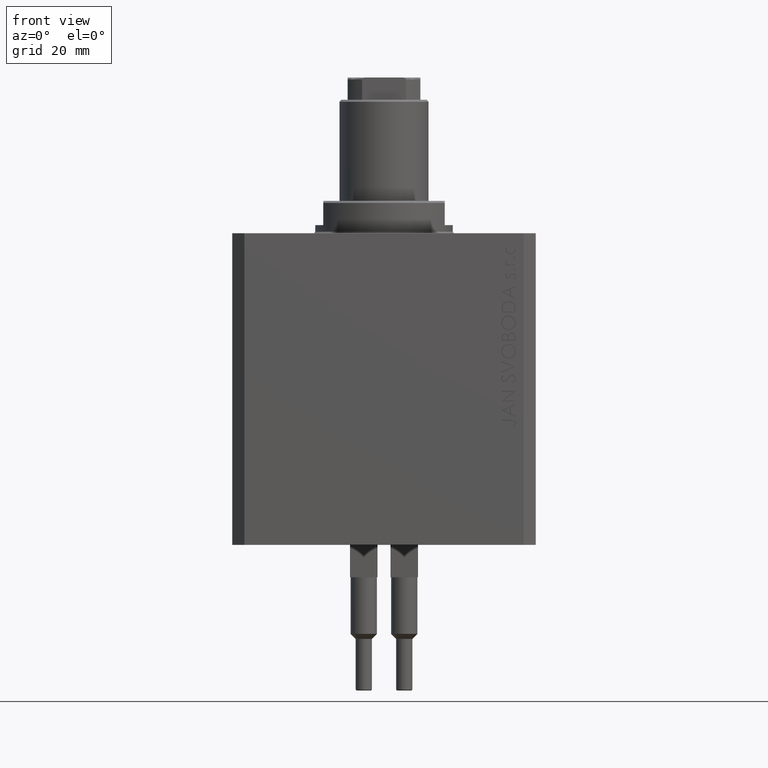
[diagram: clean part render]
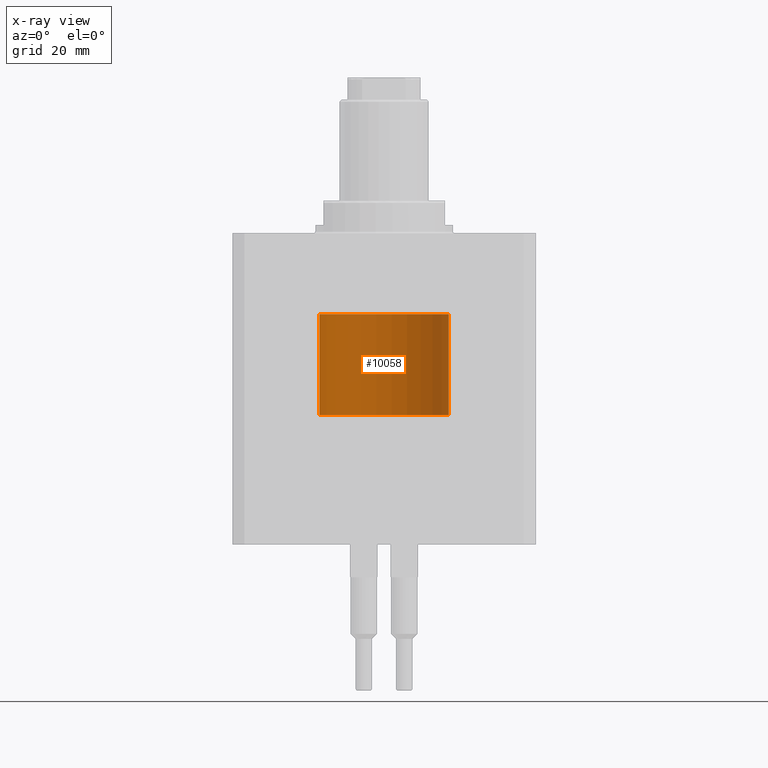
[diagram: x-ray — body ghosted, one internal face saturated and labeled with its STEP entity id]
A machine part, front view, then the same camera in x-ray: the body is ghosted and one INTERNAL B-rep face — a face not visible from any outside direction — is saturated and labeled: STEP entity #10058.
In plain terms, the highlighted cylindrical surface (partial cylindrical patch) has radius 16 mm, axis along (-0, -0, -1).
Its self-contained STEP definition (entity closure, byte-faithful):
#401 = LINE ( 'NONE', #14372, #36501 ) ;
#1152 = LINE ( 'NONE', #12148, #21972 ) ;
#1553 = EDGE_CURVE ( 'NONE', #27727, #12698, #11305, .T. ) ;
#1695 = CIRCLE ( 'NONE', #46211, 16.00000000000000000 ) ;
#1917 = CARTESIAN_POINT ( 'NONE',  ( 16.00000000000000000, 1.959434878635765131E-15, 0.000000000000000000 ) ) ;
#4247 = CARTESIAN_POINT ( 'NONE',  ( 0.000000000000000000, 0.000000000000000000, 25.00000000000000000 ) ) ;
#7612 = CARTESIAN_POINT ( 'NONE',  ( -16.00000000000000000, 0.000000000000000000, 0.000000000000000000 ) ) ;
#7903 = DIRECTION ( 'NONE',  ( -1.000000000000000000, 0.000000000000000000, 0.000000000000000000 ) ) ;
#9962 = ORIENTED_EDGE ( 'NONE', *, *, #44691, .T. ) ;
#10058 = ADVANCED_FACE ( 'NONE', ( #34282 ), #22587, .T. ) ;
#11305 = CIRCLE ( 'NONE', #45460, 16.00000000000000000 ) ;
#11778 = AXIS2_PLACEMENT_3D ( 'NONE', #19394, #19166, #7903 ) ;
#12148 = CARTESIAN_POINT ( 'NONE',  ( -16.00000000000000000, 0.000000000000000000, 25.00000000000000000 ) ) ;
#12698 = VERTEX_POINT ( 'NONE', #12960 ) ;
#12927 = ORIENTED_EDGE ( 'NONE', *, *, #17597, .F. ) ;
#12960 = CARTESIAN_POINT ( 'NONE',  ( -16.00000000000000000, 0.000000000000000000, 25.00000000000000000 ) ) ;
#14372 = CARTESIAN_POINT ( 'NONE',  ( 16.00000000000000000, 1.959434878635765131E-15, 25.00000000000000000 ) ) ;
#15488 = DIRECTION ( 'NONE',  ( 1.000000000000000000, 0.000000000000000000, 0.000000000000000000 ) ) ;
#17597 = EDGE_CURVE ( 'NONE', #12698, #44961, #1152, .T. ) ;
#19164 = DIRECTION ( 'NONE',  ( 0.000000000000000000, 0.000000000000000000, 1.000000000000000000 ) ) ;
#19166 = DIRECTION ( 'NONE',  ( -0.000000000000000000, -0.000000000000000000, -1.000000000000000000 ) ) ;
#19394 = CARTESIAN_POINT ( 'NONE',  ( 0.000000000000000000, 0.000000000000000000, 25.00000000000000000 ) ) ;
#21972 = VECTOR ( 'NONE', #45148, 1000.000000000000000 ) ;
#22587 = CYLINDRICAL_SURFACE ( 'NONE', #11778, 16.00000000000000000 ) ;
#22656 = DIRECTION ( 'NONE',  ( -0.000000000000000000, -0.000000000000000000, -1.000000000000000000 ) ) ;
#23435 = CARTESIAN_POINT ( 'NONE',  ( 0.000000000000000000, 0.000000000000000000, 0.000000000000000000 ) ) ;
#24877 = DIRECTION ( 'NONE',  ( 1.000000000000000000, 0.000000000000000000, 0.000000000000000000 ) ) ;
#27727 = VERTEX_POINT ( 'NONE', #33918 ) ;
#30534 = VERTEX_POINT ( 'NONE', #1917 ) ;
#30545 = EDGE_CURVE ( 'NONE', #30534, #44961, #1695, .T. ) ;
#30745 = ORIENTED_EDGE ( 'NONE', *, *, #1553, .F. ) ;
#33918 = CARTESIAN_POINT ( 'NONE',  ( 16.00000000000000000, 1.959434878635765131E-15, 25.00000000000000000 ) ) ;
#34282 = FACE_OUTER_BOUND ( 'NONE', #45041, .T. ) ;
#36501 = VECTOR ( 'NONE', #22656, 1000.000000000000000 ) ;
#38331 = DIRECTION ( 'NONE',  ( 0.000000000000000000, 0.000000000000000000, 1.000000000000000000 ) ) ;
#44691 = EDGE_CURVE ( 'NONE', #27727, #30534, #401, .T. ) ;
#44961 = VERTEX_POINT ( 'NONE', #7612 ) ;
#45041 = EDGE_LOOP ( 'NONE', ( #30745, #9962, #46416, #12927 ) ) ;
#45148 = DIRECTION ( 'NONE',  ( -0.000000000000000000, -0.000000000000000000, -1.000000000000000000 ) ) ;
#45460 = AXIS2_PLACEMENT_3D ( 'NONE', #4247, #19164, #15488 ) ;
#46211 = AXIS2_PLACEMENT_3D ( 'NONE', #23435, #38331, #24877 ) ;
#46416 = ORIENTED_EDGE ( 'NONE', *, *, #30545, .T. ) ;